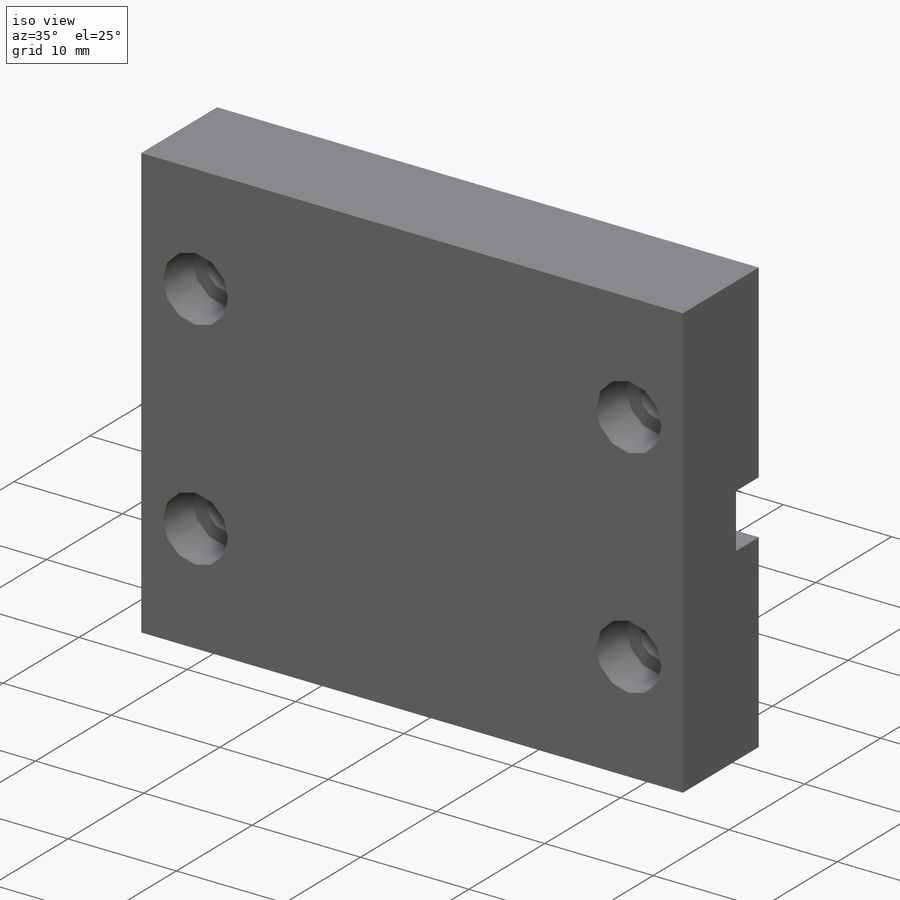
[diagram: iso view]
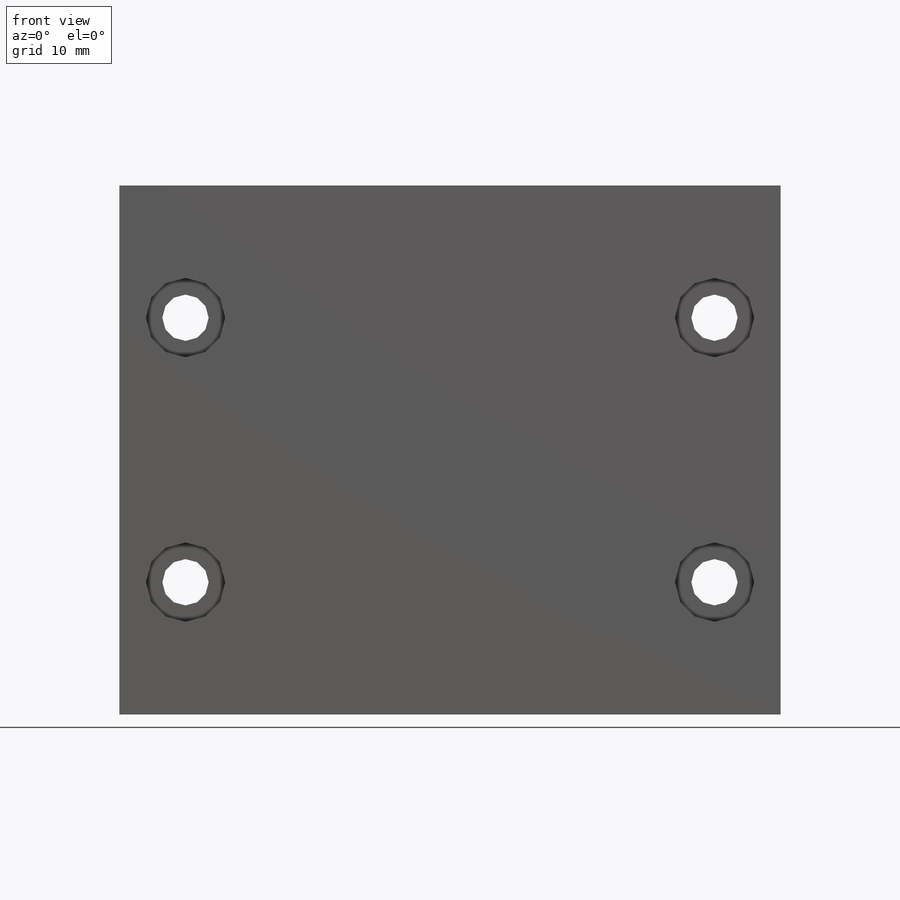
[diagram: front view]
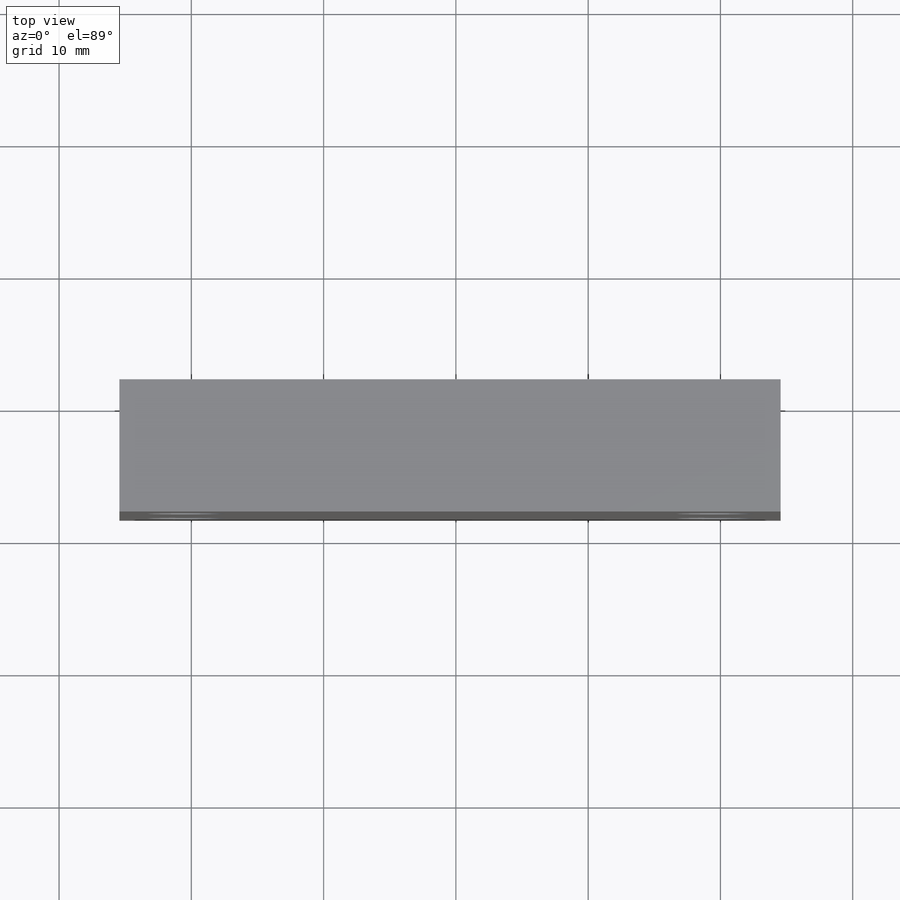
[diagram: top view]
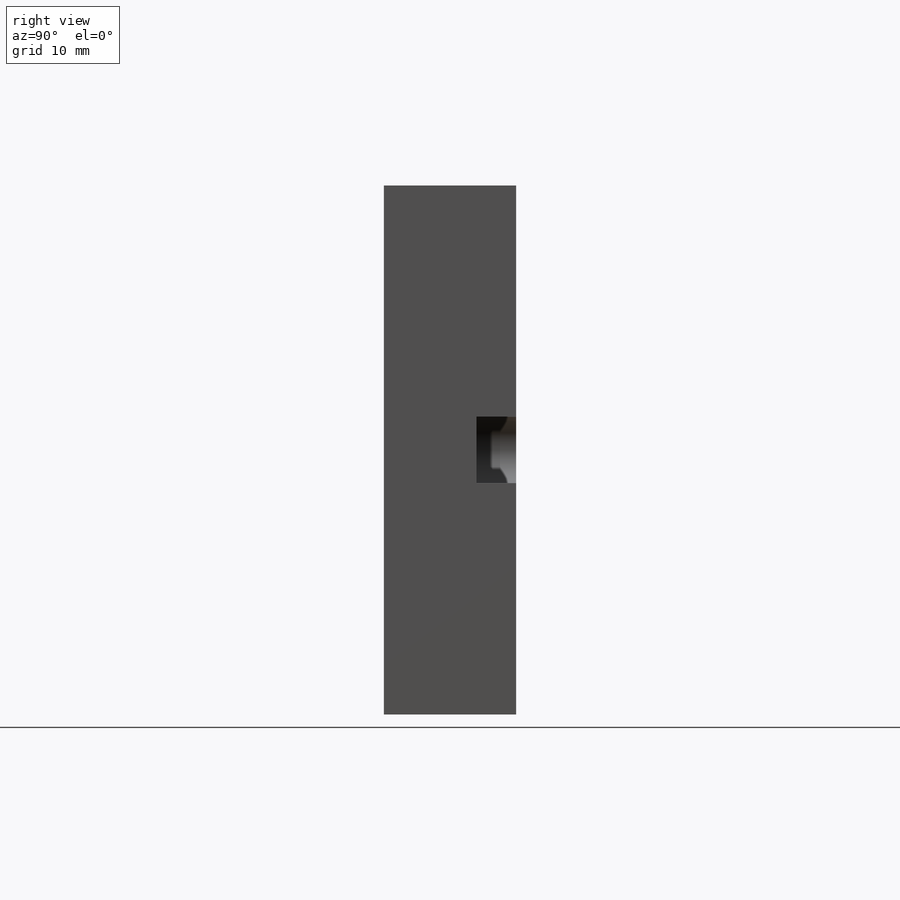
[diagram: right view]
SOLIDWORKS PART (.sldprt)
format: sldprt  version: not decoded by parser v0  size: 194,048 bytes
history: native  units: mm
features: sketch x6, cut_extrude x4, material x1, extrude x1 (+11 scaffold rows collapsed)
feature tree (23):
  scaffold x11  (default folders/planes/origin — collapsed)
  material  "Material <not specified>"
  sketch  "Sketch1"  dims[D1=10.0mm D2=50.0mm]
  extrude  "Boss-Extrude1"  Depth=40mm
  sketch  "Sketch2"  dims[c1.D1=3.5mm c1.D2=3.5mm c1.D3=3.5mm c1.D4=3.5mm c1.D5=5.0mm c1.D6=10.0mm c1.D7=10.0mm c1.D8=~5.702894mm c2.D8=90.0deg c3.D8=5.0mm c3.D9=5.0mm c3.D10=10.0mm c3.D11=5.0mm c3.D12=10.0mm]
  cut_extrude  "Cut-Extrude1"  [1 undecoded]
  sketch  "Sketch3"  dims[D1=6.0mm D2=6.0mm D3=6.0mm D4=6.0mm]
  cut_extrude  "Cut-Extrude2"  Depth=4mm
  sketch  "Sketch4"
  sketch  "Sketch5"  dims[c1.D1=5.0mm c1.D2=5.0mm c1.D3=5.0mm c1.D4=5.0mm c2.D3=5.0mm c2.D5=5.0mm c2.D6=5.0mm c3.D3=0.0mm c3.D5=0.0mm]
  cut_extrude  "Cut-Extrude3"  Depth=8mm
  sketch  "Sketch6"  dims[c1.D1=20.0mm c1.D2=10.0mm c1.D3=10.0mm c1.D4=20.0mm c2.D1=20.0mm c2.D2=20.0mm]
  cut_extrude  "Cut-Extrude4"  Depth=3mm
decode coverage: 9 of 11 modeling features carry decoded parameters
note: ~ marks probable driven/reference dimensions
note: 1 parameter value undecoded
note: suppression state not decoded; provenance and decode notes live in map.json
